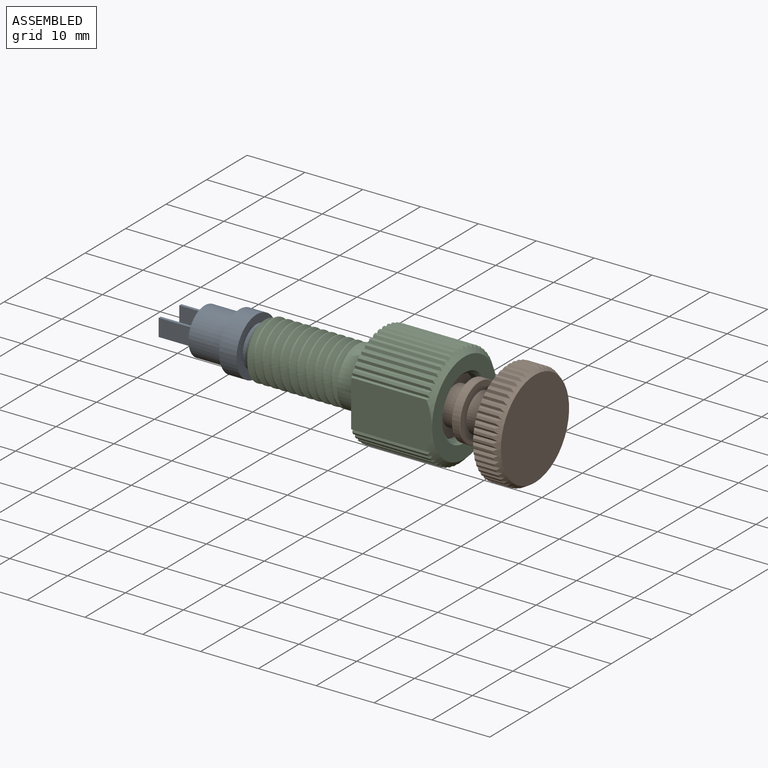
[diagram: assembled view]
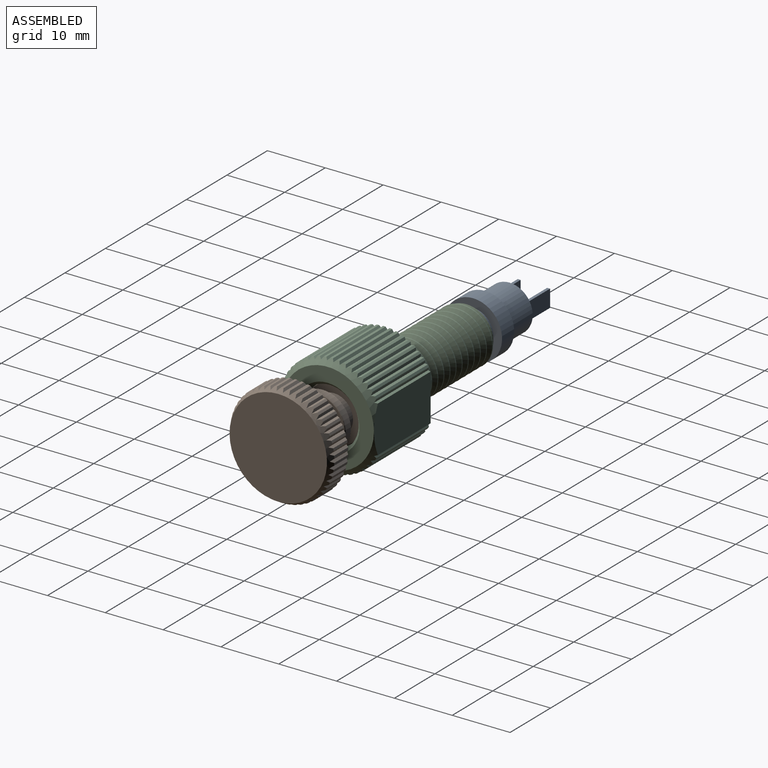
[diagram: assembled view, second angle]
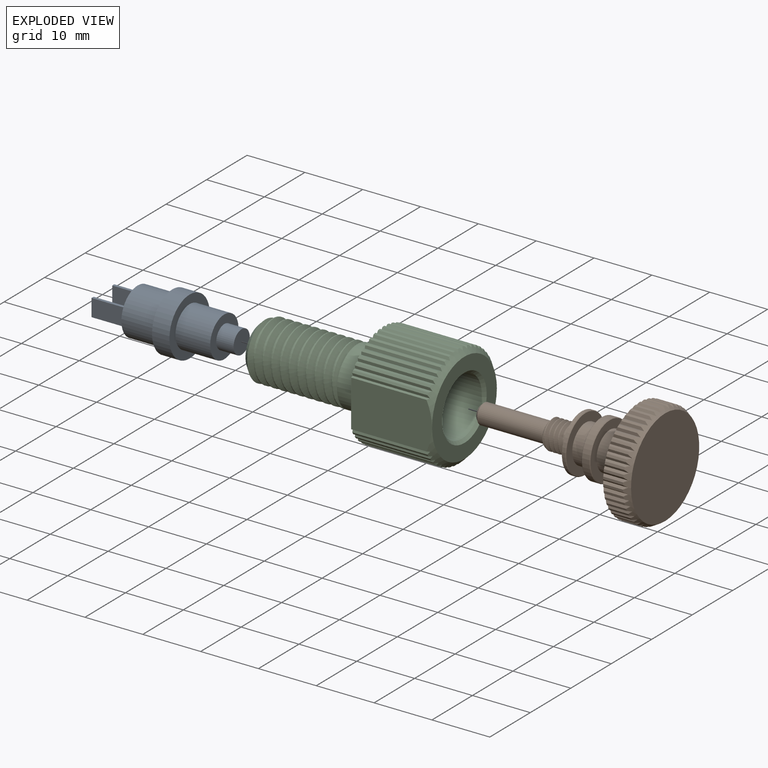
[diagram: exploded view]
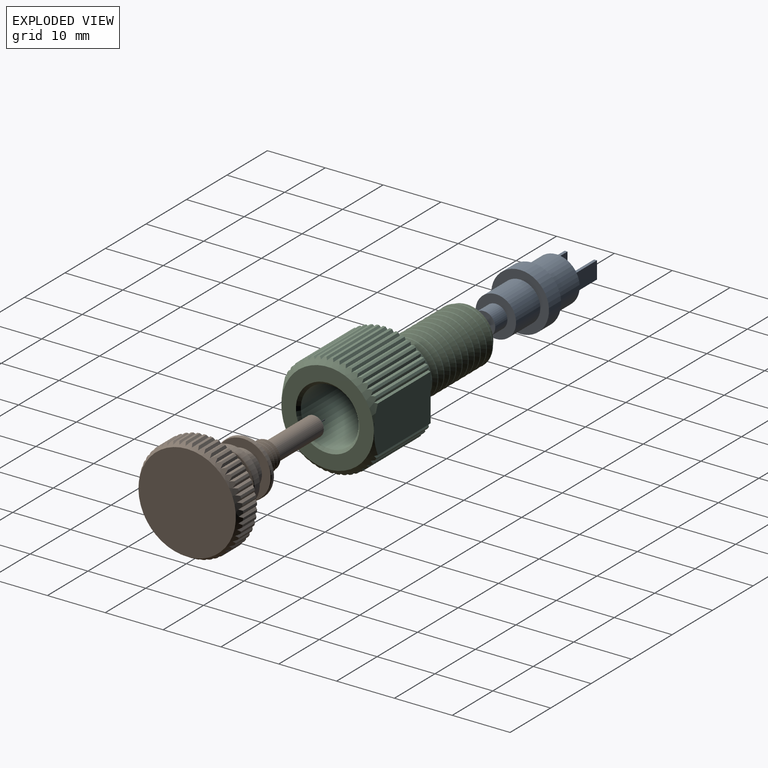
[diagram: exploded view, second angle]
ASSEMBLY  parts=3 mates=2
PART A: 19 faces, bbox 10x10x24 mm
  f0: plane 8x8mm, normal (0,0,1), area 47.3mm2, adj f4,f5,f6,f7,f8,f10,f11,f12
  f1: cylinder r=5mm len=10mm, axis (0,0,-1), area 94.2mm2, adj f2,f3
  f2: plane 10x10mm, normal (0,0,1), area 28.3mm2, adj f1,f4
  f3: plane 10x10mm, normal (0,0,-1), area 40.1mm2, adj f1,f15
  f4: cylinder r=4mm len=8mm, axis (0,0,-1), area 150.8mm2, adj f0,f2
  f5: plane 6x3mm, normal (0,1,0), area 18mm2, adj f0,f6,f8,f9
  f6: plane 6x0.5mm, normal (-1,0,0), area 3mm2, adj f0,f5,f7,f9
  f7: plane 6x3mm, normal (0,-1,0), area 18mm2, adj f0,f6,f8,f9
  f8: plane 6x0.5mm, normal (1,0,0), area 3mm2, adj f0,f5,f7,f9
  f9: plane 3x0.5mm, normal (0,0,1), area 1.5mm2, adj f5,f6,f7,f8
  f10: plane 6x0.5mm, normal (-1,0,0), area 3mm2, adj f0,f11,f13,f14
  f11: plane 6x3mm, normal (0,-1,0), area 18mm2, adj f0,f10,f12,f14
  f12: plane 6x0.5mm, normal (1,0,0), area 3mm2, adj f0,f11,f13,f14
  f13: plane 6x3mm, normal (0,1,0), area 18mm2, adj f0,f10,f12,f14
  f14: plane 3x0.5mm, normal (0,0,1), area 1.5mm2, adj f10,f11,f12,f13
  f15: cylinder r=3.5mm len=7mm, axis (0,0,1), area 131.9mm2, adj f3,f16
  f16: plane 7x7mm, normal (0,0,-1), area 25.9mm2, adj f15,f17
  f17: cylinder r=2mm len=4mm, axis (0,0,1), area 37.7mm2, adj f16,f18
  f18: plane 4x4mm, normal (0,0,-1), area 12.6mm2, adj f17
PART B: 181 faces, bbox 18.3x18.3x32.1 mm
  f0: cone r=2.5mm half-angle=60deg, axis (0,0,-1), area 64.4mm2, adj f14,f16
  f1: cone r=1.23mm half-angle=45deg, axis (0,0,-1), area 6.6mm2, adj f2,f180
  f2: cylinder r=1.73mm len=11.3mm, axis (0,0,-1), area 122.6mm2, adj f1,f3
  f3: cone r=1.73mm half-angle=55deg, axis (0,0,-1), area 7.9mm2, adj f2,f20,f176,f177,f178
  f4: cone r=4.8mm half-angle=45deg, axis (0,0,1), area 4.3mm2, adj f14,f69
  f5: cone r=4.9mm half-angle=45deg, axis (0,0,-1), area 4.3mm2, adj f12,f70
  f6: cone r=4.8mm half-angle=45deg, axis (0,0,1), area 4.3mm2, adj f12,f71
  f7: cone r=4.9mm half-angle=45deg, axis (0,0,-1), area 4.3mm2, adj f10,f72
  f8: cone r=9mm half-angle=60deg, axis (0,0,-1), area 54.4mm2, adj f15,f21,f22,f23,f24,f25,f26,f27
  f9: cone r=8.42mm half-angle=30deg, axis (0,0,1), area 50.6mm2, adj f15,f21,f22,f23,f24,f25,f26,f27
  f10: cylinder r=4.9mm len=9.8mm, axis (0,0,-1), area 53.9mm2, adj f7,f73
  f11: cylinder r=3.3mm len=6.6mm, axis (0,0,-1), area 56mm2, adj f71,f72
  f12: cylinder r=4.9mm len=9.8mm, axis (0,0,-1), area 40mm2, adj f5,f6
  f13: cylinder r=3.3mm len=6.6mm, axis (0,0,-1), area 56mm2, adj f69,f70
  f14: cylinder r=4.9mm len=9.8mm, axis (0,0,-1), area 17.6mm2, adj f0,f4
  f15: cylinder r=9mm len=3.42mm, axis (0,0,-1), area 1.5mm2, adj f8,f9,f151,f152
  f16: cylinder r=2.5mm len=5mm, axis (0,0,-1), area 4.1mm2, adj f0,f17,f177,f178,f179
  f17: cylinder r=2.5mm len=5mm, axis (0,0,-1), area 1.6mm2, adj f16,f18,f177,f178
  f18: cylinder r=2.5mm len=5mm, axis (0,0,-1), area 1.6mm2, adj f17,f19,f177,f178
  f19: cylinder r=2.5mm len=5mm, axis (0,0,-1), area 1.6mm2, adj f18,f20,f177,f178
  f20: cylinder r=2.5mm len=5mm, axis (0,0,-1), area 1mm2, adj f3,f19,f177,f178
  f21: cylinder r=9mm len=3.42mm, axis (0,0,-1), area 1.5mm2, adj f8,f9,f76,f175
  f22: cylinder r=9mm len=3.42mm, axis (0,0,-1), area 1.5mm2, adj f8,f9,f173,f174
  f23: cylinder r=9mm len=3.42mm, axis (0,0,-1), area 1.5mm2, adj f8,f9,f171,f172
  f24: cylinder r=9mm len=3.42mm, axis (0,0,-1), area 1.5mm2, adj f8,f9,f169,f170
  f25: cylinder r=9mm len=3.42mm, axis (0,0,-1), area 1.5mm2, adj f8,f9,f167,f168
  f26: cylinder r=9mm len=3.42mm, axis (0,0,-1), area 1.5mm2, adj f8,f9,f165,f166
  f27: cylinder r=9mm len=3.42mm, axis (0,0,-1), area 1.5mm2, adj f8,f9,f163,f164
  f28: cylinder r=9mm len=3.42mm, axis (0,0,-1), area 1.5mm2, adj f8,f9,f161,f162
  f29: cylinder r=9mm len=3.42mm, axis (0,0,-1), area 1.5mm2, adj f8,f9,f159,f160
  f30: cylinder r=9mm len=3.42mm, axis (0,0,-1), area 1.5mm2, adj f8,f9,f157,f158
  f31: cylinder r=9mm len=3.42mm, axis (0,0,-1), area 1.5mm2, adj f8,f9,f155,f156
  f32: cylinder r=9mm len=3.42mm, axis (0,0,-1), area 1.5mm2, adj f8,f9,f153,f154
  f33: cylinder r=9mm len=3.42mm, axis (0,0,-1), area 1.5mm2, adj f8,f9,f149,f150
  f34: cylinder r=9mm len=3.42mm, axis (0,0,-1), area 1.5mm2, adj f8,f9,f147,f148
  f35: cylinder r=9mm len=3.42mm, axis (0,0,-1), area 1.5mm2, adj f8,f9,f145,f146
  f36: cylinder r=9mm len=3.42mm, axis (0,0,-1), area 1.5mm2, adj f8,f9,f143,f144
  f37: cylinder r=9mm len=3.42mm, axis (0,0,-1), area 1.5mm2, adj f8,f9,f141,f142
  f38: cylinder r=9mm len=3.42mm, axis (0,0,-1), area 1.5mm2, adj f8,f9,f139,f140
  f39: cylinder r=9mm len=3.42mm, axis (0,0,-1), area 1.5mm2, adj f8,f9,f137,f138
  f40: cylinder r=9mm len=3.42mm, axis (0,0,-1), area 1.5mm2, adj f8,f9,f135,f136
  f41: cylinder r=9mm len=3.42mm, axis (0,0,-1), area 1.5mm2, adj f8,f9,f133,f134
  f42: cylinder r=9mm len=3.42mm, axis (0,0,-1), area 1.5mm2, adj f8,f9,f131,f132
  f43: cylinder r=9mm len=3.42mm, axis (0,0,-1), area 1.5mm2, adj f8,f9,f129,f130
  f44: cylinder r=9mm len=3.42mm, axis (0,0,-1), area 1.5mm2, adj f8,f9,f127,f128
  f45: cylinder r=9mm len=3.42mm, axis (0,0,-1), area 1.5mm2, adj f8,f9,f125,f126
  f46: cylinder r=9mm len=3.42mm, axis (0,0,-1), area 1.5mm2, adj f8,f9,f123,f124
  f47: cylinder r=9mm len=3.42mm, axis (0,0,-1), area 1.5mm2, adj f8,f9,f121,f122
  f48: cylinder r=9mm len=3.42mm, axis (0,0,-1), area 1.5mm2, adj f8,f9,f119,f120
  f49: cylinder r=9mm len=3.42mm, axis (0,0,-1), area 1.5mm2, adj f8,f9,f117,f118
  f50: cylinder r=9mm len=3.42mm, axis (0,0,-1), area 1.5mm2, adj f8,f9,f115,f116
  f51: cylinder r=9mm len=3.42mm, axis (0,0,-1), area 1.5mm2, adj f8,f9,f113,f114
  f52: cylinder r=9mm len=3.42mm, axis (0,0,-1), area 1.5mm2, adj f8,f9,f111,f112
  f53: cylinder r=9mm len=3.42mm, axis (0,0,-1), area 1.5mm2, adj f8,f9,f109,f110
  f54: cylinder r=9mm len=3.42mm, axis (0,0,-1), area 1.5mm2, adj f8,f9,f107,f108
  f55: cylinder r=9mm len=3.42mm, axis (0,0,-1), area 1.5mm2, adj f8,f9,f105,f106
  f56: cylinder r=9mm len=3.42mm, axis (0,0,-1), area 1.5mm2, adj f8,f9,f103,f104
  f57: cylinder r=9mm len=3.42mm, axis (0,0,-1), area 1.5mm2, adj f8,f9,f101,f102
  f58: cylinder r=9mm len=3.42mm, axis (0,0,-1), area 1.5mm2, adj f8,f9,f99,f100
  f59: cylinder r=9mm len=3.42mm, axis (0,0,-1), area 1.5mm2, adj f8,f9,f97,f98
  f60: cylinder r=9mm len=3.42mm, axis (0,0,-1), area 1.5mm2, adj f8,f9,f95,f96
  f61: cylinder r=9mm len=3.42mm, axis (0,0,-1), area 1.5mm2, adj f8,f9,f93,f94
  f62: cylinder r=9mm len=3.42mm, axis (0,0,-1), area 1.5mm2, adj f8,f9,f91,f92
  f63: cylinder r=9mm len=3.42mm, axis (0,0,-1), area 1.5mm2, adj f8,f9,f89,f90
  f64: cylinder r=9mm len=3.42mm, axis (0,0,-1), area 1.5mm2, adj f8,f9,f87,f88
  f65: cylinder r=9mm len=3.42mm, axis (0,0,-1), area 1.5mm2, adj f8,f9,f85,f86
  f66: cylinder r=9mm len=3.42mm, axis (0,0,-1), area 1.5mm2, adj f8,f9,f83,f84
  f67: cylinder r=9mm len=3.42mm, axis (0,0,-1), area 1.5mm2, adj f8,f9,f81,f82
  f68: cylinder r=9mm len=3.42mm, axis (0,0,-1), area 1.5mm2, adj f8,f9,f79,f80
  f69: plane 9.6x9.6mm, normal (0,0,-1), area 38.2mm2, adj f4,f13
  f70: plane 9.6x9.6mm, normal (0,0,1), area 38.2mm2, adj f5,f13
  f71: plane 9.6x9.6mm, normal (0,0,-1), area 38.2mm2, adj f6,f11
  f72: plane 9.6x9.6mm, normal (0,0,1), area 38.2mm2, adj f7,f11
  f73: plane 16x16mm, normal (0,0,1), area 125.6mm2, adj f8,f10
  f74: cylinder r=9mm len=3.42mm, axis (0,0,-1), area 1.5mm2, adj f8,f9,f77,f78
  f75: plane 16.85x16.85mm, normal (0,0,-1), area 222.9mm2, adj f9
  f76: plane 4.26x0.36mm, normal (0.71,0.71,0), area 1.9mm2, adj f8,f9,f21,f77
  f77: plane 4.26x0.36mm, normal (-0.71,0.71,0), area 1.9mm2, adj f8,f9,f74,f76
  f78: plane 4.26x0.4mm, normal (0.79,0.61,0), area 1.9mm2, adj f8,f9,f74,f79
  f79: plane 4.26x0.4mm, normal (-0.61,0.79,0), area 1.9mm2, adj f8,f9,f68,f78
  f80: plane 4.26x0.44mm, normal (0.86,0.51,0), area 1.9mm2, adj f8,f9,f68,f81
  f81: plane 4.26x0.44mm, normal (-0.51,0.86,0), area 1.9mm2, adj f8,f9,f67,f80
  f82: plane 4.26x0.47mm, normal (0.92,0.4,0), area 1.9mm2, adj f8,f9,f67,f83
  f83: plane 4.26x0.47mm, normal (-0.4,0.92,0), area 1.9mm2, adj f8,f9,f66,f82
  f84: plane 4.26x0.49mm, normal (0.96,0.28,0), area 1.9mm2, adj f8,f9,f66,f85
  f85: plane 4.26x0.49mm, normal (-0.28,0.96,0), area 1.9mm2, adj f8,f9,f65,f84
  f86: plane 4.26x0.5mm, normal (0.99,0.16,0), area 1.9mm2, adj f8,f9,f65,f87
  f87: plane 4.26x0.5mm, normal (-0.16,0.99,0), area 1.9mm2, adj f8,f9,f64,f86
  f88: plane 4.26x0.51mm, normal (1,0.03,0), area 1.9mm2, adj f8,f9,f64,f89
  f89: plane 4.26x0.51mm, normal (-0.03,1,0), area 1.9mm2, adj f8,f9,f63,f88
  f90: plane 4.26x0.51mm, normal (1,-0.09,0), area 1.9mm2, adj f8,f9,f63,f91
  f91: plane 4.26x0.51mm, normal (0.09,1,0), area 1.9mm2, adj f8,f9,f62,f90
  f92: plane 4.26x0.5mm, normal (0.98,-0.22,0), area 1.9mm2, adj f8,f9,f62,f93
  f93: plane 4.26x0.5mm, normal (0.22,0.98,0), area 1.9mm2, adj f8,f9,f61,f92
  f94: plane 4.26x0.48mm, normal (0.94,-0.34,0), area 1.9mm2, adj f8,f9,f61,f95
  f95: plane 4.26x0.48mm, normal (0.34,0.94,0), area 1.9mm2, adj f8,f9,f60,f94
  f96: plane 4.26x0.45mm, normal (0.89,-0.45,0), area 1.9mm2, adj f8,f9,f60,f97
  f97: plane 4.26x0.45mm, normal (0.45,0.89,0), area 1.9mm2, adj f8,f9,f59,f96
  f98: plane 4.26x0.42mm, normal (0.83,-0.56,0), area 1.9mm2, adj f8,f9,f59,f99
  f99: plane 4.26x0.42mm, normal (0.56,0.83,0), area 1.9mm2, adj f8,f9,f58,f98
  f100: plane 4.26x0.38mm, normal (0.75,-0.66,0), area 1.9mm2, adj f8,f9,f58,f101
  f101: plane 4.26x0.38mm, normal (0.66,0.75,0), area 1.9mm2, adj f8,f9,f57,f100
  f102: plane 4.26x0.38mm, normal (0.66,-0.75,0), area 1.9mm2, adj f8,f9,f57,f103
  f103: plane 4.26x0.38mm, normal (0.75,0.66,0), area 1.9mm2, adj f8,f9,f56,f102
  f104: plane 4.26x0.42mm, normal (0.56,-0.83,0), area 1.9mm2, adj f8,f9,f56,f105
  f105: plane 4.26x0.42mm, normal (0.83,0.56,0), area 1.9mm2, adj f8,f9,f55,f104
  f106: plane 4.26x0.45mm, normal (0.45,-0.89,0), area 1.9mm2, adj f8,f9,f55,f107
  f107: plane 4.26x0.45mm, normal (0.89,0.45,0), area 1.9mm2, adj f8,f9,f54,f106
  f108: plane 4.26x0.48mm, normal (0.34,-0.94,0), area 1.9mm2, adj f8,f9,f54,f109
  f109: plane 4.26x0.48mm, normal (0.94,0.34,0), area 1.9mm2, adj f8,f9,f53,f108
  f110: plane 4.26x0.5mm, normal (0.22,-0.98,0), area 1.9mm2, adj f8,f9,f53,f111
  f111: plane 4.26x0.5mm, normal (0.98,0.22,0), area 1.9mm2, adj f8,f9,f52,f110
  f112: plane 4.26x0.51mm, normal (0.09,-1,0), area 1.9mm2, adj f8,f9,f52,f113
  f113: plane 4.26x0.51mm, normal (1,0.09,0), area 1.9mm2, adj f8,f9,f51,f112
  f114: plane 4.26x0.51mm, normal (-0.03,-1,0), area 1.9mm2, adj f8,f9,f51,f115
  f115: plane 4.26x0.51mm, normal (1,-0.03,0), area 1.9mm2, adj f8,f9,f50,f114
  f116: plane 4.26x0.5mm, normal (-0.16,-0.99,0), area 1.9mm2, adj f8,f9,f50,f117
  f117: plane 4.26x0.5mm, normal (0.99,-0.16,0), area 1.9mm2, adj f8,f9,f49,f116
  f118: plane 4.26x0.49mm, normal (-0.28,-0.96,0), area 1.9mm2, adj f8,f9,f49,f119
  f119: plane 4.26x0.49mm, normal (0.96,-0.28,0), area 1.9mm2, adj f8,f9,f48,f118
  f120: plane 4.26x0.47mm, normal (-0.4,-0.92,0), area 1.9mm2, adj f8,f9,f48,f121
  f121: plane 4.26x0.47mm, normal (0.92,-0.4,0), area 1.9mm2, adj f8,f9,f47,f120
  f122: plane 4.26x0.44mm, normal (-0.51,-0.86,0), area 1.9mm2, adj f8,f9,f47,f123
  f123: plane 4.26x0.44mm, normal (0.86,-0.51,0), area 1.9mm2, adj f8,f9,f46,f122
  f124: plane 4.26x0.4mm, normal (-0.61,-0.79,0), area 1.9mm2, adj f8,f9,f46,f125
  f125: plane 4.26x0.4mm, normal (0.79,-0.61,0), area 1.9mm2, adj f8,f9,f45,f124
  f126: plane 4.26x0.36mm, normal (-0.71,-0.71,0), area 1.9mm2, adj f8,f9,f45,f127
  f127: plane 4.26x0.36mm, normal (0.71,-0.71,0), area 1.9mm2, adj f8,f9,f44,f126
  f128: plane 4.26x0.4mm, normal (-0.79,-0.61,0), area 1.9mm2, adj f8,f9,f44,f129
  f129: plane 4.26x0.4mm, normal (0.61,-0.79,0), area 1.9mm2, adj f8,f9,f43,f128
  f130: plane 4.26x0.44mm, normal (-0.86,-0.51,0), area 1.9mm2, adj f8,f9,f43,f131
  f131: plane 4.26x0.44mm, normal (0.51,-0.86,0), area 1.9mm2, adj f8,f9,f42,f130
  f132: plane 4.26x0.47mm, normal (-0.92,-0.4,0), area 1.9mm2, adj f8,f9,f42,f133
  f133: plane 4.26x0.47mm, normal (0.4,-0.92,0), area 1.9mm2, adj f8,f9,f41,f132
  f134: plane 4.26x0.49mm, normal (-0.96,-0.28,0), area 1.9mm2, adj f8,f9,f41,f135
  f135: plane 4.26x0.49mm, normal (0.28,-0.96,0), area 1.9mm2, adj f8,f9,f40,f134
  f136: plane 4.26x0.5mm, normal (-0.99,-0.16,0), area 1.9mm2, adj f8,f9,f40,f137
  f137: plane 4.26x0.5mm, normal (0.16,-0.99,0), area 1.9mm2, adj f8,f9,f39,f136
  f138: plane 4.26x0.51mm, normal (-1,-0.03,0), area 1.9mm2, adj f8,f9,f39,f139
  f139: plane 4.26x0.51mm, normal (0.03,-1,0), area 1.9mm2, adj f8,f9,f38,f138
  f140: plane 4.26x0.51mm, normal (-1,0.09,0), area 1.9mm2, adj f8,f9,f38,f141
  f141: plane 4.26x0.51mm, normal (-0.09,-1,0), area 1.9mm2, adj f8,f9,f37,f140
  f142: plane 4.26x0.5mm, normal (-0.98,0.22,0), area 1.9mm2, adj f8,f9,f37,f143
  f143: plane 4.26x0.5mm, normal (-0.22,-0.98,0), area 1.9mm2, adj f8,f9,f36,f142
  f144: plane 4.26x0.48mm, normal (-0.94,0.34,0), area 1.9mm2, adj f8,f9,f36,f145
  f145: plane 4.26x0.48mm, normal (-0.34,-0.94,0), area 1.9mm2, adj f8,f9,f35,f144
  f146: plane 4.26x0.45mm, normal (-0.89,0.45,0), area 1.9mm2, adj f8,f9,f35,f147
  f147: plane 4.26x0.45mm, normal (-0.45,-0.89,0), area 1.9mm2, adj f8,f9,f34,f146
  f148: plane 4.26x0.42mm, normal (-0.83,0.56,0), area 1.9mm2, adj f8,f9,f34,f149
  f149: plane 4.26x0.42mm, normal (-0.56,-0.83,0), area 1.9mm2, adj f8,f9,f33,f148
  f150: plane 4.26x0.38mm, normal (-0.75,0.66,0), area 1.9mm2, adj f8,f9,f33,f151
  f151: plane 4.26x0.38mm, normal (-0.66,-0.75,0), area 1.9mm2, adj f8,f9,f15,f150
  f152: plane 4.26x0.38mm, normal (-0.66,0.75,0), area 1.9mm2, adj f8,f9,f15,f153
  f153: plane 4.26x0.38mm, normal (-0.75,-0.66,0), area 1.9mm2, adj f8,f9,f32,f152
  f154: plane 4.26x0.42mm, normal (-0.56,0.83,0), area 1.9mm2, adj f8,f9,f32,f155
  f155: plane 4.26x0.42mm, normal (-0.83,-0.56,0), area 1.9mm2, adj f8,f9,f31,f154
  f156: plane 4.26x0.45mm, normal (-0.45,0.89,0), area 1.9mm2, adj f8,f9,f31,f157
  f157: plane 4.26x0.45mm, normal (-0.89,-0.45,0), area 1.9mm2, adj f8,f9,f30,f156
  f158: plane 4.26x0.48mm, normal (-0.34,0.94,0), area 1.9mm2, adj f8,f9,f30,f159
  f159: plane 4.26x0.48mm, normal (-0.94,-0.34,0), area 1.9mm2, adj f8,f9,f29,f158
  f160: plane 4.26x0.5mm, normal (-0.22,0.98,0), area 1.9mm2, adj f8,f9,f29,f161
  f161: plane 4.26x0.5mm, normal (-0.98,-0.22,0), area 1.9mm2, adj f8,f9,f28,f160
  f162: plane 4.26x0.51mm, normal (-0.09,1,0), area 1.9mm2, adj f8,f9,f28,f163
  f163: plane 4.26x0.51mm, normal (-1,-0.09,0), area 1.9mm2, adj f8,f9,f27,f162
  f164: plane 4.26x0.51mm, normal (0.03,1,0), area 1.9mm2, adj f8,f9,f27,f165
  f165: plane 4.26x0.51mm, normal (-1,0.03,0), area 1.9mm2, adj f8,f9,f26,f164
  f166: plane 4.26x0.5mm, normal (0.16,0.99,0), area 1.9mm2, adj f8,f9,f26,f167
  f167: plane 4.26x0.5mm, normal (-0.99,0.16,0), area 1.9mm2, adj f8,f9,f25,f166
  f168: plane 4.26x0.49mm, normal (0.28,0.96,0), area 1.9mm2, adj f8,f9,f25,f169
  f169: plane 4.26x0.49mm, normal (-0.96,0.28,0), area 1.9mm2, adj f8,f9,f24,f168
  f170: plane 4.26x0.47mm, normal (0.4,0.92,0), area 1.9mm2, adj f8,f9,f24,f171
  f171: plane 4.26x0.47mm, normal (-0.92,0.4,0), area 1.9mm2, adj f8,f9,f23,f170
  f172: plane 4.26x0.44mm, normal (0.51,0.86,0), area 1.9mm2, adj f8,f9,f23,f173
  f173: plane 4.26x0.44mm, normal (-0.86,0.51,0), area 1.9mm2, adj f8,f9,f22,f172
  f174: plane 4.26x0.4mm, normal (0.61,0.79,0), area 1.9mm2, adj f8,f9,f22,f175
  f175: plane 4.26x0.4mm, normal (-0.79,0.61,0), area 1.9mm2, adj f8,f9,f21,f174
  f176: cylinder r=1.98mm len=3.96mm, axis (0,0,1), area 5.9mm2, adj f3,f177,f178,f179
  f177: bspline ~5x5mm, area 38.4mm2, adj f3,f16,f17,f18,f19,f20,f176,f179
  f178: bspline ~5x5mm, area 38.4mm2, adj f3,f16,f17,f18,f19,f20,f176,f179
  f179: plane 5.31x5.31mm, normal (0,0,1), area 3.8mm2, adj f16,f176,f177,f178
  f180: plane 2.45x2.45mm, normal (0,0,1), area 4.7mm2, adj f1
PART C: 163 faces, bbox 18.3x18.3x35.9 mm
  f0: cylinder r=5.41mm len=10.82mm, axis (0,0,1), area 42.5mm2, adj f40,f156
  f1: cylinder r=7.56mm len=15.12mm, axis (0,0,1), area 59.4mm2, adj f39,f156
  f2: cone r=5mm half-angle=45deg, axis (0,0,1), area 23.3mm2, adj f19,f77
  f3: cone r=3.8mm half-angle=45deg, axis (0,0,-1), area 15.8mm2, adj f5,f74
  f4: cone r=8mm half-angle=45deg, axis (0,0,-1), area 26.7mm2, adj f36,f41,f42,f43,f44,f45,f46,f47
  f5: cylinder r=3.3mm len=6.6mm, axis (0,0,1), area 41.5mm2, adj f3,f37
  f6: cylinder r=2.66mm len=5.93mm, axis (0,0,1), area 90.5mm2, adj f10,f79,f159,f160,f162
  f7: cylinder r=2.66mm len=5.32mm, axis (0,0,1), area 1.7mm2, adj f8,f11,f159,f160
  f8: cylinder r=2.66mm len=5.32mm, axis (0,0,1), area 1.7mm2, adj f7,f9,f159,f160
  f9: cylinder r=2.66mm len=5.32mm, axis (0,0,1), area 1.7mm2, adj f8,f10,f159,f160
  f10: cylinder r=2.66mm len=5.32mm, axis (0,0,1), area 1.7mm2, adj f6,f9,f159,f160
  f11: cylinder r=2.66mm len=5.32mm, axis (0,0,1), area 0.9mm2, adj f7,f37,f159,f160
  f12: cylinder r=2.1mm len=4.2mm, axis (0,0,1), area 3.1mm2, adj f13,f18,f81,f82
  f13: cylinder r=2.1mm len=4.2mm, axis (0,0,1), area 3.1mm2, adj f12,f14,f81,f82
  f14: cylinder r=2.1mm len=4.2mm, axis (0,0,1), area 3.1mm2, adj f13,f15,f81,f82
  f15: cylinder r=2.1mm len=4.2mm, axis (0,0,1), area 3.1mm2, adj f14,f16,f81,f82
  f16: cylinder r=2.1mm len=4.2mm, axis (0,0,1), area 3.1mm2, adj f15,f17,f81,f82
  f17: cylinder r=2.1mm len=4.2mm, axis (0,0,1), area 1.2mm2, adj f16,f78,f81,f82
  f18: cylinder r=2.1mm len=7.22mm, axis (0,0,1), area 90mm2, adj f12,f79,f80,f81
  f19: cylinder r=5mm len=11.25mm, axis (0,0,1), area 353.4mm2, adj f2,f78
  f20: cylinder r=5mm len=10mm, axis (0,0,1), area 144.5mm2, adj f21,f32,f40,f75,f76
  f21: cylinder r=5mm len=10mm, axis (0,0,1), area 5.9mm2, adj f20,f22,f75,f76
  f22: cylinder r=5mm len=10mm, axis (0,0,1), area 5.9mm2, adj f21,f23,f75,f76
  f23: cylinder r=5mm len=10mm, axis (0,0,1), area 5.9mm2, adj f22,f24,f75,f76
  f24: cylinder r=5mm len=10mm, axis (0,0,1), area 5.9mm2, adj f23,f25,f75,f76
  f25: cylinder r=5mm len=10mm, axis (0,0,1), area 5.9mm2, adj f24,f26,f75,f76
  f26: cylinder r=5mm len=10mm, axis (0,0,1), area 5.9mm2, adj f25,f27,f75,f76
  f27: cylinder r=5mm len=10mm, axis (0,0,1), area 5.9mm2, adj f26,f28,f75,f76
  f28: cylinder r=5mm len=10mm, axis (0,0,1), area 5.9mm2, adj f27,f29,f75,f76
  f29: cylinder r=5mm len=10mm, axis (0,0,1), area 5.9mm2, adj f28,f30,f75,f76
  f30: cylinder r=5mm len=10mm, axis (0,0,1), area 5.9mm2, adj f29,f31,f34,f75,f76
  f31: cylinder r=5mm len=2.97mm, axis (0,0,1), area 0.2mm2, adj f30,f33,f76
  f32: cone r=4.03mm half-angle=65deg, axis (0,0,1), area 15.6mm2, adj f20,f35,f75,f76
  f33: cone r=5mm half-angle=45deg, axis (0,0,1), area 24.4mm2, adj f31,f34,f35,f74,f75,f76
  f34: cone r=5mm half-angle=45deg, axis (0,0,1), area 0mm2, adj f30,f33,f75
  f35: cylinder r=4.03mm len=16mm, axis (0,0,-1), area 50.6mm2, adj f32,f33,f75,f76
  f36: cylinder r=9mm len=13mm, axis (0,0,-1), area 5.5mm2, adj f4,f39,f136,f139
  f37: plane 6.91x6.91mm, normal (0,0,-1), area 7.4mm2, adj f5,f11,f159,f160,f161
  f38: cone r=8mm half-angle=45deg, axis (0,0,-1), area 26.7mm2, adj f57,f58,f59,f60,f61,f62,f63,f64
  f39: plane 18x16mm, normal (0,0,-1), area 59.2mm2, adj f1,f36,f41,f42,f43,f44,f45,f46
  f40: plane 10.82x10.82mm, normal (0,0,-1), area 13.4mm2, adj f0,f20
  f41: cylinder r=9mm len=13mm, axis (0,0,-1), area 5.5mm2, adj f4,f39,f152,f155
  f42: cylinder r=9mm len=13mm, axis (0,0,-1), area 5.5mm2, adj f4,f39,f150,f153
  f43: cylinder r=9mm len=13mm, axis (0,0,-1), area 5.5mm2, adj f4,f39,f148,f151
  f44: cylinder r=9mm len=13mm, axis (0,0,-1), area 5.5mm2, adj f4,f39,f146,f149
  f45: cylinder r=9mm len=13mm, axis (0,0,-1), area 5.5mm2, adj f4,f39,f144,f147
  f46: cylinder r=9mm len=13mm, axis (0,0,-1), area 5.5mm2, adj f4,f39,f142,f145
  f47: cylinder r=9mm len=13mm, axis (0,0,-1), area 5.5mm2, adj f4,f39,f140,f143
  f48: cylinder r=9mm len=13mm, axis (0,0,-1), area 5.5mm2, adj f4,f39,f138,f141
  f49: cylinder r=9mm len=13mm, axis (0,0,-1), area 5.5mm2, adj f4,f39,f134,f137
  f50: cylinder r=9mm len=13mm, axis (0,0,-1), area 5.5mm2, adj f4,f39,f132,f135
  f51: cylinder r=9mm len=13mm, axis (0,0,-1), area 5.5mm2, adj f4,f39,f130,f133
  f52: cylinder r=9mm len=13mm, axis (0,0,-1), area 5.5mm2, adj f4,f39,f128,f131
  f53: cylinder r=9mm len=13mm, axis (0,0,-1), area 5.5mm2, adj f4,f39,f126,f129
  f54: cylinder r=9mm len=13mm, axis (0,0,-1), area 5.5mm2, adj f4,f39,f124,f127
  f55: cylinder r=9mm len=13mm, axis (0,0,-1), area 5.5mm2, adj f4,f39,f122,f125
  f56: cylinder r=9mm len=13mm, axis (0,0,-1), area 5.5mm2, adj f4,f39,f120,f123
  f57: cylinder r=9mm len=13mm, axis (0,0,-1), area 5.5mm2, adj f38,f39,f116,f119
  f58: cylinder r=9mm len=13mm, axis (0,0,-1), area 5.5mm2, adj f38,f39,f114,f117
  f59: cylinder r=9mm len=13mm, axis (0,0,-1), area 5.5mm2, adj f38,f39,f112,f115
  f60: cylinder r=9mm len=13mm, axis (0,0,-1), area 5.5mm2, adj f38,f39,f110,f113
  f61: cylinder r=9mm len=13mm, axis (0,0,-1), area 5.5mm2, adj f38,f39,f108,f111
  f62: cylinder r=9mm len=13mm, axis (0,0,-1), area 5.5mm2, adj f38,f39,f106,f109
  f63: cylinder r=9mm len=13mm, axis (0,0,-1), area 5.5mm2, adj f38,f39,f104,f107
  f64: cylinder r=9mm len=13mm, axis (0,0,-1), area 5.5mm2, adj f38,f39,f102,f105
  f65: cylinder r=9mm len=13mm, axis (0,0,-1), area 5.5mm2, adj f38,f39,f100,f103
  f66: cylinder r=9mm len=13mm, axis (0,0,-1), area 5.5mm2, adj f38,f39,f98,f101
  f67: cylinder r=9mm len=13mm, axis (0,0,-1), area 5.5mm2, adj f38,f39,f96,f99
  f68: cylinder r=9mm len=13mm, axis (0,0,-1), area 5.5mm2, adj f38,f39,f94,f97
  f69: cylinder r=9mm len=13mm, axis (0,0,-1), area 5.5mm2, adj f38,f39,f92,f95
  f70: cylinder r=9mm len=13mm, axis (0,0,-1), area 5.5mm2, adj f38,f39,f90,f93
  f71: cylinder r=9mm len=13mm, axis (0,0,-1), area 5.5mm2, adj f38,f39,f88,f91
  f72: cylinder r=9mm len=13mm, axis (0,0,-1), area 5.5mm2, adj f38,f39,f86,f89
  f73: cylinder r=9mm len=13mm, axis (0,0,-1), area 5.5mm2, adj f38,f39,f84,f87
  f74: plane 7.75x7.75mm, normal (0,0,-1), area 1.8mm2, adj f3,f33
  f75: bspline ~16.56x9.99mm, area 334.9mm2, adj f20,f21,f22,f23,f24,f25,f26,f27
  f76: bspline ~17.58x9.98mm, area 336.8mm2, adj f20,f21,f22,f23,f24,f25,f26,f27
  f77: plane 16x16mm, normal (0,0,1), area 106mm2, adj f2,f4,f38
  f78: plane 10.18x10.18mm, normal (0,0,1), area 62.3mm2, adj f17,f19,f81,f82,f83
  f79: plane 5.32x5.32mm, normal (0,0,-1), area 8.4mm2, adj f6,f18
  f80: plane 0.56x0.4mm, normal (0,1,0), area 0.1mm2, adj f18,f81,f82,f83
  f81: bspline ~5.22x5mm, area 42.4mm2, adj f12,f13,f14,f15,f16,f17,f18,f78
  f82: bspline ~5x5mm, area 39.5mm2, adj f12,f13,f14,f15,f16,f17,f78,f80
  f83: cylinder r=2.5mm len=5mm, axis (0,0,-1), area 8.1mm2, adj f78,f80,f81,f82
  f84: plane 13.37x0.49mm, normal (-0.28,0.96,0), area 6.6mm2, adj f38,f39,f73,f85
  f85: plane 13.37x0.44mm, normal (0.96,0.28,0), area 5.9mm2, adj f38,f39,f84,f157
  f86: plane 13.37x0.5mm, normal (-0.16,0.99,0), area 6.6mm2, adj f38,f39,f72,f87
  f87: plane 13.37x0.5mm, normal (0.99,0.16,0), area 6.6mm2, adj f38,f39,f73,f86
  f88: plane 13.37x0.51mm, normal (-0.03,1,0), area 6.6mm2, adj f38,f39,f71,f89
  f89: plane 13.37x0.51mm, normal (1,0.03,0), area 6.6mm2, adj f38,f39,f72,f88
  f90: plane 13.37x0.51mm, normal (0.09,1,0), area 6.6mm2, adj f38,f39,f70,f91
  f91: plane 13.37x0.51mm, normal (1,-0.09,0), area 6.6mm2, adj f38,f39,f71,f90
  f92: plane 13.37x0.5mm, normal (0.22,0.98,0), area 6.6mm2, adj f38,f39,f69,f93
  f93: plane 13.37x0.5mm, normal (0.98,-0.22,0), area 6.6mm2, adj f38,f39,f70,f92
  f94: plane 13.37x0.48mm, normal (0.34,0.94,0), area 6.6mm2, adj f38,f39,f68,f95
  f95: plane 13.37x0.48mm, normal (0.94,-0.34,0), area 6.6mm2, adj f38,f39,f69,f94
  f96: plane 13.37x0.45mm, normal (0.45,0.89,0), area 6.6mm2, adj f38,f39,f67,f97
  f97: plane 13.37x0.45mm, normal (0.89,-0.45,0), area 6.6mm2, adj f38,f39,f68,f96
  f98: plane 13.37x0.42mm, normal (0.56,0.83,0), area 6.6mm2, adj f38,f39,f66,f99
  f99: plane 13.37x0.42mm, normal (0.83,-0.56,0), area 6.6mm2, adj f38,f39,f67,f98
  f100: plane 13.37x0.38mm, normal (0.66,0.75,0), area 6.6mm2, adj f38,f39,f65,f101
  f101: plane 13.37x0.38mm, normal (0.75,-0.66,0), area 6.6mm2, adj f38,f39,f66,f100
  f102: plane 13.37x0.38mm, normal (0.75,0.66,0), area 6.6mm2, adj f38,f39,f64,f103
  f103: plane 13.37x0.38mm, normal (0.66,-0.75,0), area 6.6mm2, adj f38,f39,f65,f102
  f104: plane 13.37x0.42mm, normal (0.83,0.56,0), area 6.6mm2, adj f38,f39,f63,f105
  f105: plane 13.37x0.42mm, normal (0.56,-0.83,0), area 6.6mm2, adj f38,f39,f64,f104
  f106: plane 13.37x0.45mm, normal (0.89,0.45,0), area 6.6mm2, adj f38,f39,f62,f107
  f107: plane 13.37x0.45mm, normal (0.45,-0.89,0), area 6.6mm2, adj f38,f39,f63,f106
  f108: plane 13.37x0.48mm, normal (0.94,0.34,0), area 6.6mm2, adj f38,f39,f61,f109
  f109: plane 13.37x0.48mm, normal (0.34,-0.94,0), area 6.6mm2, adj f38,f39,f62,f108
  f110: plane 13.37x0.5mm, normal (0.98,0.22,0), area 6.6mm2, adj f38,f39,f60,f111
  f111: plane 13.37x0.5mm, normal (0.22,-0.98,0), area 6.6mm2, adj f38,f39,f61,f110
  f112: plane 13.37x0.51mm, normal (1,0.09,0), area 6.6mm2, adj f38,f39,f59,f113
  f113: plane 13.37x0.51mm, normal (0.09,-1,0), area 6.6mm2, adj f38,f39,f60,f112
  f114: plane 13.37x0.51mm, normal (1,-0.03,0), area 6.6mm2, adj f38,f39,f58,f115
  f115: plane 13.37x0.51mm, normal (-0.03,-1,0), area 6.6mm2, adj f38,f39,f59,f114
  f116: plane 13.37x0.5mm, normal (0.99,-0.16,0), area 6.6mm2, adj f38,f39,f57,f117
  f117: plane 13.37x0.5mm, normal (-0.16,-0.99,0), area 6.6mm2, adj f38,f39,f58,f116
  f118: plane 13.37x0.44mm, normal (0.96,-0.28,0), area 5.9mm2, adj f38,f39,f119,f158
  f119: plane 13.37x0.49mm, normal (-0.28,-0.96,0), area 6.6mm2, adj f38,f39,f57,f118
  f120: plane 13.37x0.49mm, normal (0.28,-0.96,0), area 6.6mm2, adj f4,f39,f56,f121
  f121: plane 13.37x0.44mm, normal (-0.96,-0.28,0), area 5.9mm2, adj f4,f39,f120,f158
  f122: plane 13.37x0.5mm, normal (0.16,-0.99,0), area 6.6mm2, adj f4,f39,f55,f123
  f123: plane 13.37x0.5mm, normal (-0.99,-0.16,0), area 6.6mm2, adj f4,f39,f56,f122
  f124: plane 13.37x0.51mm, normal (0.03,-1,0), area 6.6mm2, adj f4,f39,f54,f125
  f125: plane 13.37x0.51mm, normal (-1,-0.03,0), area 6.6mm2, adj f4,f39,f55,f124
  f126: plane 13.37x0.51mm, normal (-0.09,-1,0), area 6.6mm2, adj f4,f39,f53,f127
  f127: plane 13.37x0.51mm, normal (-1,0.09,0), area 6.6mm2, adj f4,f39,f54,f126
  f128: plane 13.37x0.5mm, normal (-0.22,-0.98,0), area 6.6mm2, adj f4,f39,f52,f129
  f129: plane 13.37x0.5mm, normal (-0.98,0.22,0), area 6.6mm2, adj f4,f39,f53,f128
  f130: plane 13.37x0.48mm, normal (-0.34,-0.94,0), area 6.6mm2, adj f4,f39,f51,f131
  f131: plane 13.37x0.48mm, normal (-0.94,0.34,0), area 6.6mm2, adj f4,f39,f52,f130
  f132: plane 13.37x0.45mm, normal (-0.45,-0.89,0), area 6.6mm2, adj f4,f39,f50,f133
  f133: plane 13.37x0.45mm, normal (-0.89,0.45,0), area 6.6mm2, adj f4,f39,f51,f132
  f134: plane 13.37x0.42mm, normal (-0.56,-0.83,0), area 6.6mm2, adj f4,f39,f49,f135
  f135: plane 13.37x0.42mm, normal (-0.83,0.56,0), area 6.6mm2, adj f4,f39,f50,f134
  f136: plane 13.37x0.38mm, normal (-0.66,-0.75,0), area 6.6mm2, adj f4,f36,f39,f137
  f137: plane 13.37x0.38mm, normal (-0.75,0.66,0), area 6.6mm2, adj f4,f39,f49,f136
  f138: plane 13.37x0.38mm, normal (-0.75,-0.66,0), area 6.6mm2, adj f4,f39,f48,f139
  f139: plane 13.37x0.38mm, normal (-0.66,0.75,0), area 6.6mm2, adj f4,f36,f39,f138
  f140: plane 13.37x0.42mm, normal (-0.83,-0.56,0), area 6.6mm2, adj f4,f39,f47,f141
  f141: plane 13.37x0.42mm, normal (-0.56,0.83,0), area 6.6mm2, adj f4,f39,f48,f140
  f142: plane 13.37x0.45mm, normal (-0.89,-0.45,0), area 6.6mm2, adj f4,f39,f46,f143
  f143: plane 13.37x0.45mm, normal (-0.45,0.89,0), area 6.6mm2, adj f4,f39,f47,f142
  f144: plane 13.37x0.48mm, normal (-0.94,-0.34,0), area 6.6mm2, adj f4,f39,f45,f145
  f145: plane 13.37x0.48mm, normal (-0.34,0.94,0), area 6.6mm2, adj f4,f39,f46,f144
  f146: plane 13.37x0.5mm, normal (-0.98,-0.22,0), area 6.6mm2, adj f4,f39,f44,f147
  f147: plane 13.37x0.5mm, normal (-0.22,0.98,0), area 6.6mm2, adj f4,f39,f45,f146
  f148: plane 13.37x0.51mm, normal (-1,-0.09,0), area 6.6mm2, adj f4,f39,f43,f149
  f149: plane 13.37x0.51mm, normal (-0.09,1,0), area 6.6mm2, adj f4,f39,f44,f148
  f150: plane 13.37x0.51mm, normal (-1,0.03,0), area 6.6mm2, adj f4,f39,f42,f151
  f151: plane 13.37x0.51mm, normal (0.03,1,0), area 6.6mm2, adj f4,f39,f43,f150
  f152: plane 13.37x0.5mm, normal (-0.99,0.16,0), area 6.6mm2, adj f4,f39,f41,f153
  f153: plane 13.37x0.5mm, normal (0.16,0.99,0), area 6.6mm2, adj f4,f39,f42,f152
  f154: plane 13.37x0.44mm, normal (-0.96,0.28,0), area 5.9mm2, adj f4,f39,f155,f157
  f155: plane 13.37x0.49mm, normal (0.28,0.96,0), area 6.6mm2, adj f4,f39,f41,f154
  f156: plane 15.12x15.12mm, normal (0,0,-1), area 87.6mm2, adj f0,f1
  f157: plane 14x8.08mm, normal (0,1,0), area 110.4mm2, adj f4,f38,f39,f85,f154
  f158: plane 14x8.08mm, normal (0,-1,0), area 110.4mm2, adj f4,f38,f39,f118,f121
  f159: bspline ~6.33x6.33mm, area 54.6mm2, adj f6,f7,f8,f9,f10,f11,f37,f161
  f160: bspline ~6.35x6.35mm, area 59.8mm2, adj f6,f7,f8,f9,f10,f11,f37,f161
  f161: bspline ~6.51x6.35mm, area 10.4mm2, adj f37,f159,f160,f162
  f162: plane 0.69x0.45mm, normal (0.87,-0.49,0), area 0.2mm2, adj f6,f159,f160,f161
PLACE A rot(axis=(0,-1,0),90deg) t=(100.18,0.72,7.34)mm
PLACE B rot(axis=(-0.71,0,0.71),180deg) t=(133.3,0.72,7.34)mm
PLACE C rot(axis=(0,1,0),90deg) t=(122.1,0.72,7.34)mm
MATE slider B.f0 <-> C.f0  axis (1,0,0) through (143.3,0.72,7.34)mm
MATE slider A.f15 <-> C.f0  axis (-1,0,0) through (103.18,0.72,7.34)mm
